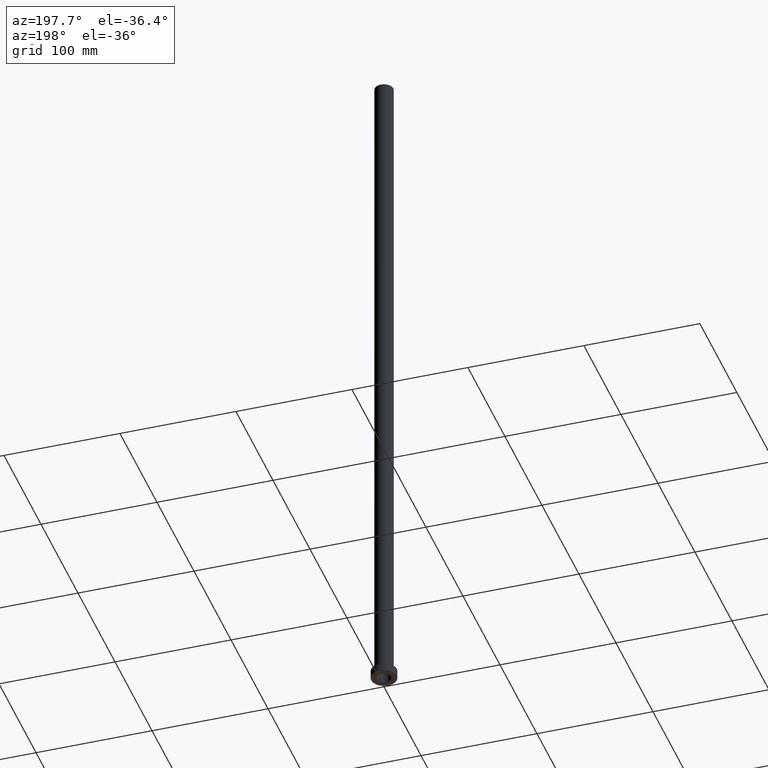
[diagram: clean part render]
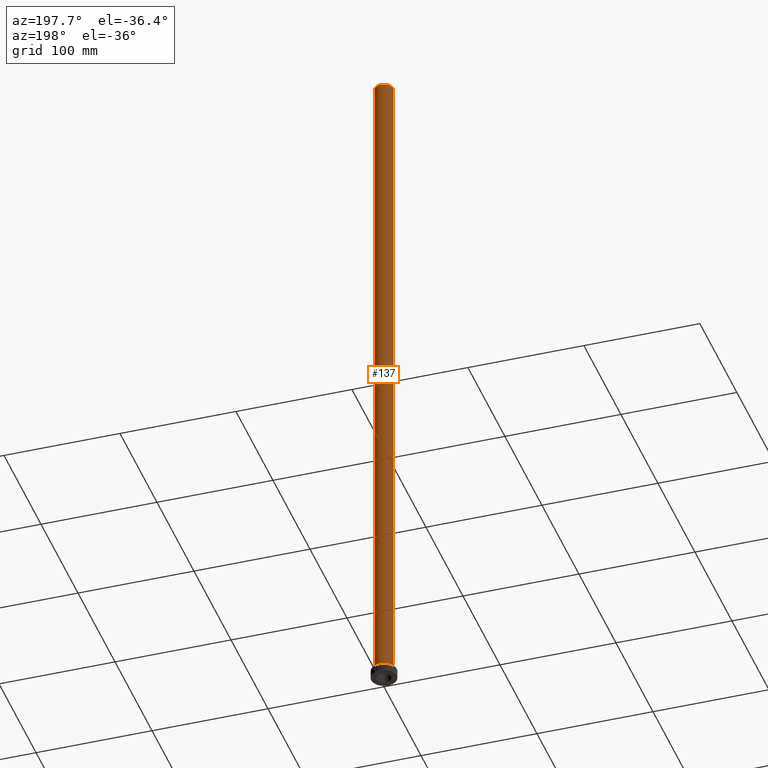
[diagram: same view with one face highlighted and labeled with its STEP entity id]
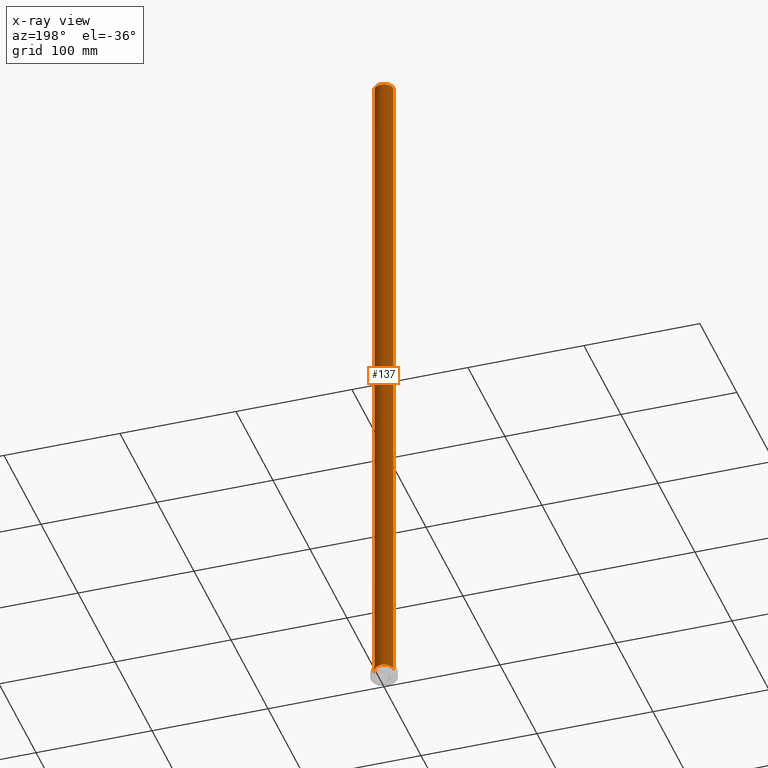
[diagram: x-ray of the same camera — body ghosted, the highlighted face saturated]
A machine part, auxiliary view. The second image highlights one B-rep face of the part: STEP entity #137.
The next image is the same camera in x-ray: the body ghosted, the highlighted face saturated — about 0% of this face is hidden behind the body in this view.
In plain terms, the highlighted cylindrical surface (edge-blend (fillet) strip) has radius 8 mm, axis along (-0, -0, -1).
Its self-contained STEP definition (entity closure, byte-faithful):
#7 = VECTOR ( 'NONE', #116, 1000.000000000000000 ) ;
#14 = VECTOR ( 'NONE', #342, 1000.000000000000000 ) ;
#25 = ORIENTED_EDGE ( 'NONE', *, *, #398, .F. ) ;
#32 = VERTEX_POINT ( 'NONE', #457 ) ;
#33 = ORIENTED_EDGE ( 'NONE', *, *, #216, .T. ) ;
#58 = ORIENTED_EDGE ( 'NONE', *, *, #209, .T. ) ;
#92 = DIRECTION ( 'NONE',  ( 0.000000000000000000, 0.000000000000000000, 1.000000000000000000 ) ) ;
#114 = DIRECTION ( 'NONE',  ( 1.000000000000000000, 0.000000000000000000, 0.000000000000000000 ) ) ;
#116 = DIRECTION ( 'NONE',  ( -0.000000000000000000, -0.000000000000000000, -1.000000000000000000 ) ) ;
#122 = ORIENTED_EDGE ( 'NONE', *, *, #304, .F. ) ;
#124 = CARTESIAN_POINT ( 'NONE',  ( 8.000000000000000000, 9.797174393178825657E-16, 600.0000000000000000 ) ) ;
#137 = ADVANCED_FACE ( 'NONE', ( #441 ), #348, .T. ) ;
#152 = DIRECTION ( 'NONE',  ( -0.000000000000000000, -0.000000000000000000, -1.000000000000000000 ) ) ;
#162 = CARTESIAN_POINT ( 'NONE',  ( 0.000000000000000000, 0.000000000000000000, 600.0000000000000000 ) ) ;
#164 = CARTESIAN_POINT ( 'NONE',  ( 0.000000000000000000, 0.000000000000000000, 7.700000000000040146 ) ) ;
#166 = AXIS2_PLACEMENT_3D ( 'NONE', #284, #152, #305 ) ;
#209 = EDGE_CURVE ( 'NONE', #429, #426, #345, .T. ) ;
#216 = EDGE_CURVE ( 'NONE', #426, #355, #297, .T. ) ;
#222 = LINE ( 'NONE', #299, #7 ) ;
#251 = DIRECTION ( 'NONE',  ( 1.000000000000000000, 0.000000000000000000, 0.000000000000000000 ) ) ;
#253 = AXIS2_PLACEMENT_3D ( 'NONE', #164, #92, #251 ) ;
#269 = CARTESIAN_POINT ( 'NONE',  ( 8.000000000000000000, 9.797174393178825657E-16, 7.700000000000040146 ) ) ;
#271 = EDGE_LOOP ( 'NONE', ( #122, #58, #33, #25 ) ) ;
#272 = CARTESIAN_POINT ( 'NONE',  ( 8.000000000000000000, 9.797174393178825657E-16, 600.0000000000000000 ) ) ;
#284 = CARTESIAN_POINT ( 'NONE',  ( 0.000000000000000000, 0.000000000000000000, 600.0000000000000000 ) ) ;
#297 = CIRCLE ( 'NONE', #253, 8.000000000000000000 ) ;
#299 = CARTESIAN_POINT ( 'NONE',  ( -8.000000000000000000, 0.000000000000000000, 600.0000000000000000 ) ) ;
#304 = EDGE_CURVE ( 'NONE', #429, #32, #388, .T. ) ;
#305 = DIRECTION ( 'NONE',  ( -1.000000000000000000, 0.000000000000000000, 0.000000000000000000 ) ) ;
#342 = DIRECTION ( 'NONE',  ( -0.000000000000000000, -0.000000000000000000, -1.000000000000000000 ) ) ;
#345 = LINE ( 'NONE', #124, #14 ) ;
#348 = CYLINDRICAL_SURFACE ( 'NONE', #166, 8.000000000000000000 ) ;
#355 = VERTEX_POINT ( 'NONE', #443 ) ;
#371 = AXIS2_PLACEMENT_3D ( 'NONE', #162, #434, #114 ) ;
#388 = CIRCLE ( 'NONE', #371, 8.000000000000000000 ) ;
#398 = EDGE_CURVE ( 'NONE', #32, #355, #222, .T. ) ;
#426 = VERTEX_POINT ( 'NONE', #269 ) ;
#429 = VERTEX_POINT ( 'NONE', #272 ) ;
#434 = DIRECTION ( 'NONE',  ( 0.000000000000000000, 0.000000000000000000, 1.000000000000000000 ) ) ;
#441 = FACE_OUTER_BOUND ( 'NONE', #271, .T. ) ;
#443 = CARTESIAN_POINT ( 'NONE',  ( -8.000000000000000000, 0.000000000000000000, 7.700000000000040146 ) ) ;
#457 = CARTESIAN_POINT ( 'NONE',  ( -8.000000000000000000, 0.000000000000000000, 600.0000000000000000 ) ) ;